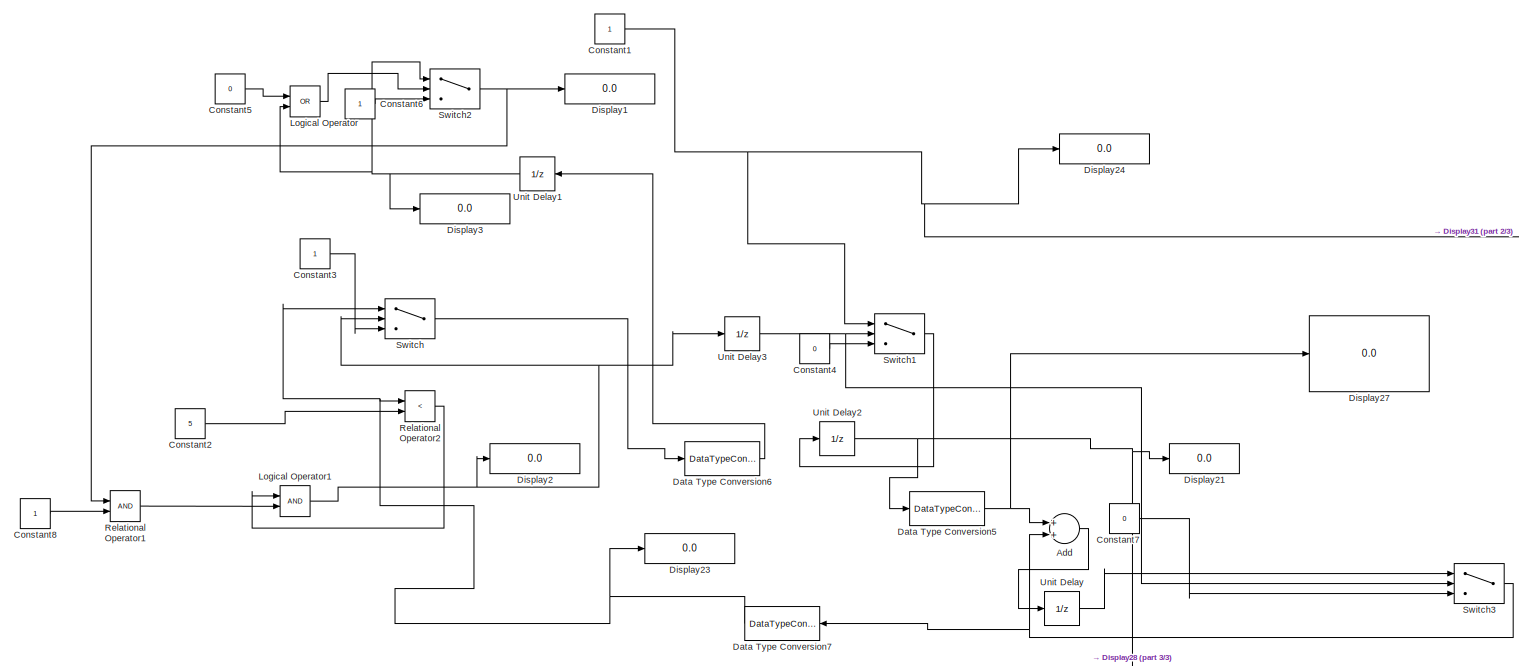
[diagram: root canvas - part 1/3, most of the canvas]
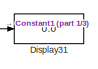
[diagram: root canvas - part 2/3, middle right region]
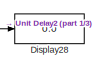
[diagram: root canvas - part 3/3, bottom right region]
MODEL slx_5c23341507da
KIND model
CONFIG AbsTol = auto
CONFIG EnableMultiTasking = off
CONFIG FixedStep = auto
CONFIG MaxStep = auto
CONFIG MinStep = auto
CONFIG RelTol = 1e-3
CONFIG SampleTimeConstraint = Unconstrained
CONFIG Solver = VariableStepAuto
CONFIG SolverName = VariableStepAuto
CONFIG StartTime = 0.0
CONFIG StopTime = inf
BLOCK [Sum] Add
  InputSameDT = off
  OutDataTypeStr = single
  Ports = [2, 1]
  SaturateOnIntegerOverflow = off
BLOCK [Constant] Constant1
  OutDataTypeStr = single
BLOCK [Constant] Constant2
  OutDataTypeStr = single
  Value = 5
BLOCK [Constant] Constant3
  OutDataTypeStr = single
BLOCK [Constant] Constant4
  OutDataTypeStr = single
  Value = 0
BLOCK [Constant] Constant5
  OutDataTypeStr = single
  Value = 0
BLOCK [Constant] Constant6
  OutDataTypeStr = single
BLOCK [Constant] Constant7
  OutDataTypeStr = single
  Value = 0
BLOCK [Constant] Constant8
  OutDataTypeStr = single
BLOCK [DataTypeConversion] Data Type Conversion5
  OutDataTypeStr = single
  RndMeth = Floor
  SaturateOnIntegerOverflow = off
BLOCK [DataTypeConversion] Data Type Conversion6
  OutDataTypeStr = single
  RndMeth = Round
  SaturateOnIntegerOverflow = off
BLOCK [DataTypeConversion] Data Type Conversion7
  OutDataTypeStr = single
  RndMeth = Ceiling
  SaturateOnIntegerOverflow = off
BLOCK [Display] Display1
  Decimation = 1
  Ports = [1]
BLOCK [Display] Display2
  Decimation = 1
  Ports = [1]
BLOCK [Display] Display21
  Decimation = 1
  Ports = [1]
BLOCK [Display] Display23
  Decimation = 1
  Ports = [1]
BLOCK [Display] Display24
  Decimation = 1
  Ports = [1]
BLOCK [Display] Display27
  Decimation = 1
  Ports = [1]
BLOCK [Display] Display28
  Decimation = 1
  Ports = [1]
BLOCK [Display] Display3
  Decimation = 1
  Ports = [1]
BLOCK [Display] Display31
  Decimation = 1
  Ports = [1]
BLOCK [Logic] Logical Operator
  AllPortsSameDT = off
  Operator = OR
  OutDataTypeStr = boolean
  Ports = [2, 1]
BLOCK [Logic] Logical Operator1
  AllPortsSameDT = off
  OutDataTypeStr = boolean
  Ports = [2, 1]
BLOCK [RelationalOperator] Relational Operator1
  InputSameDT = off
  OutDataTypeStr = boolean
  Ports = [2, 1]
  RndMeth = Simplest
  ZeroCross = off
BLOCK [RelationalOperator] Relational Operator2
  InputSameDT = off
  Operator = <
  OutDataTypeStr = boolean
  Ports = [2, 1]
  RndMeth = Simplest
  ZeroCross = off
BLOCK [Switch] Switch
  InputSameDT = off
  SaturateOnIntegerOverflow = off
  Threshold = 4
BLOCK [Switch] Switch1
  Criteria = u2 > Threshold
  InputSameDT = off
  SaturateOnIntegerOverflow = off
BLOCK [Switch] Switch2
  InputSameDT = off
  SaturateOnIntegerOverflow = off
  Threshold = 4
BLOCK [Switch] Switch3
  Criteria = u2 > Threshold
  InputSameDT = off
  SaturateOnIntegerOverflow = off
BLOCK [UnitDelay] Unit Delay
  InputProcessing = Columns as channels (frame based)
  SampleTime = 10
BLOCK [UnitDelay] Unit Delay1
  InputProcessing = Columns as channels (frame based)
  SampleTime = 0.1
BLOCK [UnitDelay] Unit Delay2
  InputProcessing = Columns as channels (frame based)
  SampleTime = 0.1
BLOCK [UnitDelay] Unit Delay3
  InputProcessing = Columns as channels (frame based)
  SampleTime = 0.1
LINE Add:1 -> Unit Delay:1
NET Constant1:1 -> Display24:1, Display31:1, Switch1:1
LINE Constant2:1 -> Relational Operator2:2
LINE Constant3:1 -> Switch:3
LINE Constant4:1 -> Switch1:3
LINE Constant5:1 -> Logical Operator:1
LINE Constant6:1 -> Switch2:3
LINE Constant7:1 -> Switch3:3
LINE Constant8:1 -> Relational Operator1:2
NET Data Type Conversion5:1 -> Add:1, Display27:1
LINE Data Type Conversion6:1 -> Unit Delay1:1
NET Data Type Conversion7:1 -> Display23:1, Relational Operator2:1, Switch:1
NET Logical Operator1:1 -> Display2:1, Switch:2, Unit Delay3:1
LINE Logical Operator:1 -> Switch2:2
LINE Relational Operator1:1 -> Logical Operator1:2
LINE Relational Operator2:1 -> Logical Operator1:1
LINE Switch1:1 -> Unit Delay2:1
NET Switch2:1 -> Display1:1, Relational Operator1:1
NET Switch3:1 -> Add:2, Data Type Conversion7:1
LINE Switch:1 -> Data Type Conversion6:1
NET Unit Delay1:1 -> Display3:1, Logical Operator:2, Switch2:1
NET Unit Delay2:1 -> Data Type Conversion5:1, Display21:1, Display28:1
NET Unit Delay3:1 -> Switch1:2, Switch3:2
LINE Unit Delay:1 -> Switch3:1
note: NET lines group one-source signal fan-out (src -> all destinations, sorted); 1:1 wires keep LINE
